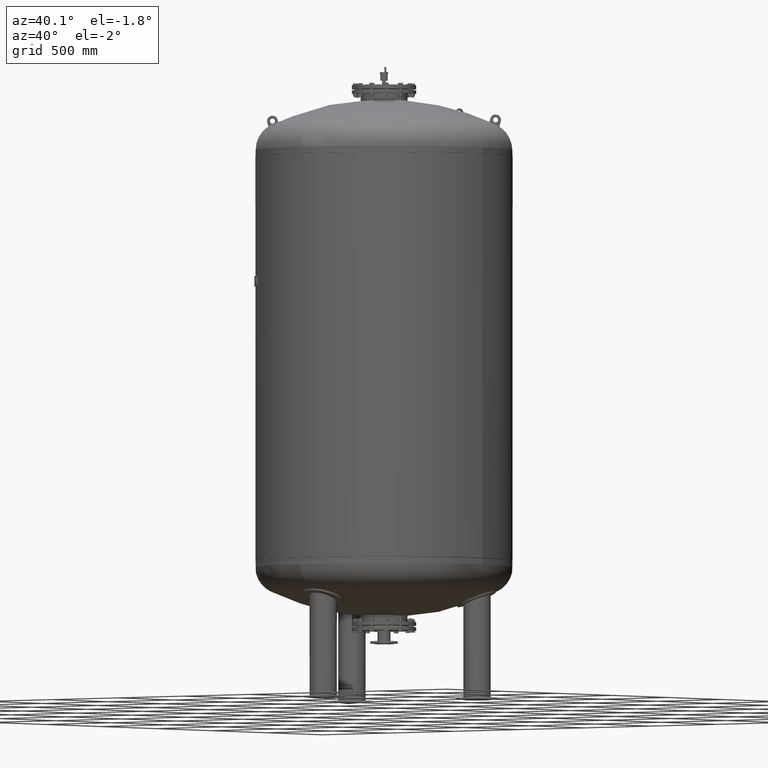
[diagram: clean part render]
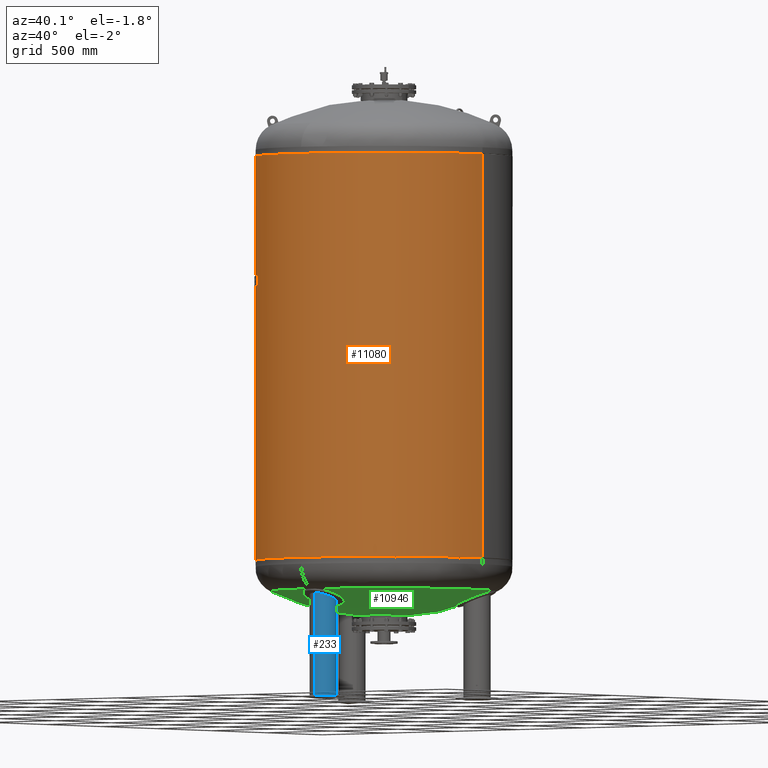
[diagram: same view with three faces highlighted in distinct colors, each labeled with its STEP entity id]
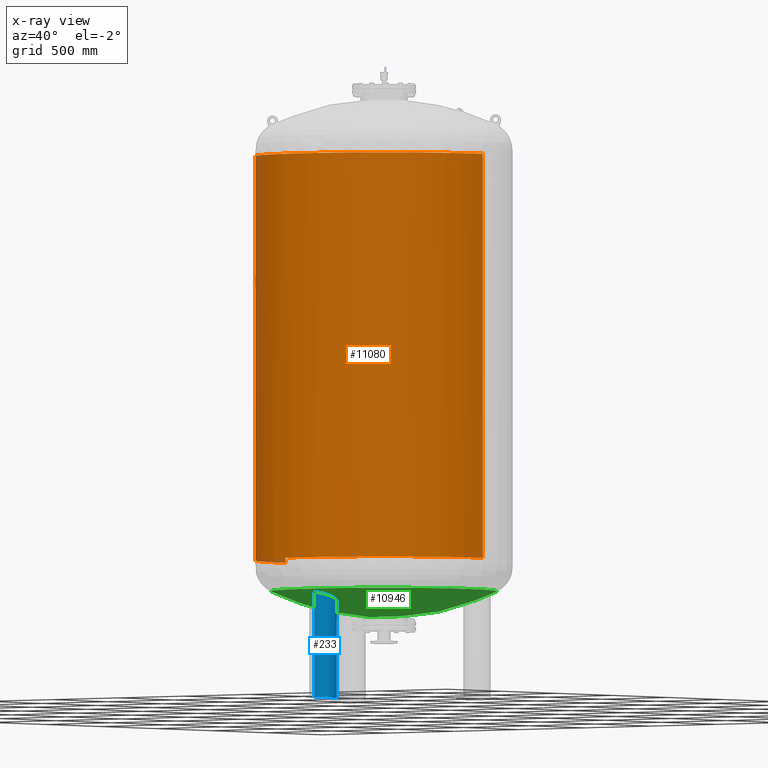
[diagram: x-ray of the same camera — body ghosted, the three highlighted faces saturated]
A machine part, auxiliary view with three faces highlighted in distinct colors.
The next image is the same camera in x-ray (body ghosted, the three faces saturated) — at least one of them is partly hidden behind the body in this view.
Their STEP definitions:

[orange] entity #11080 — the highlighted cylindrical surface (partial cylindrical patch) has radius 750 mm, axis along (0, 0, 1).
#11039=CARTESIAN_POINT('',(8.322769E-015,0.0,2588.500000000000000));
#11040=DIRECTION('',(1.414234E-017,0.0,1.0));
#11041=DIRECTION('',(1.0,0.0,0.0));
#11042=AXIS2_PLACEMENT_3D('',#11039,#11040,#11041);
#11043=CYLINDRICAL_SURFACE('',#11042,750.000000000000910);
#11044=CARTESIAN_POINT('',(750.000000000001360,0.0,3177.0));
#11045=VERTEX_POINT('',#11044);
#11046=CARTESIAN_POINT('',(749.999999999999890,0.0,822.999999999999770));
#11047=VERTEX_POINT('',#11046);
#11048=CARTESIAN_POINT('',(750.000000000001360,0.0,3177.0));
#11049=DIRECTION('',(0.0,0.0,-1.0));
#11050=VECTOR('',#11049,2354.0);
#11051=LINE('',#11048,#11050);
#11052=EDGE_CURVE('',#11045,#11047,#11051,.T.);
#11053=ORIENTED_EDGE('',*,*,#11052,.F.);
#11054=CARTESIAN_POINT('',(-750.000000000000910,-9.184548E-014,3177.0));
#11055=VERTEX_POINT('',#11054);
#11056=CARTESIAN_POINT('',(1.664554E-014,0.0,3177.0));
#11057=DIRECTION('',(0.0,0.0,1.0));
#11058=DIRECTION('',(1.0,0.0,0.0));
#11059=AXIS2_PLACEMENT_3D('',#11056,#11057,#11058);
#11060=CIRCLE('',#11059,750.000000000001360);
#11061=EDGE_CURVE('',#11055,#11045,#11060,.T.);
#11062=ORIENTED_EDGE('',*,*,#11061,.F.);
#11063=CARTESIAN_POINT('',(-749.999999999999770,-9.184548E-014,822.999999999999660));
#11064=VERTEX_POINT('',#11063);
#11065=CARTESIAN_POINT('',(-750.000000000000910,-9.184548E-014,3177.0));
#11066=DIRECTION('',(0.0,0.0,-1.0));
#11067=VECTOR('',#11066,2354.000000000000500);
#11068=LINE('',#11065,#11067);
#11069=EDGE_CURVE('',#11055,#11064,#11068,.T.);
#11070=ORIENTED_EDGE('',*,*,#11069,.T.);
#11071=CARTESIAN_POINT('',(-1.664554E-014,0.0,822.999999999999550));
#11072=DIRECTION('',(0.0,0.0,1.0));
#11073=DIRECTION('',(1.0,0.0,0.0));
#11074=AXIS2_PLACEMENT_3D('',#11071,#11072,#11073);
#11075=CIRCLE('',#11074,749.999999999999890);
#11076=EDGE_CURVE('',#11064,#11047,#11075,.T.);
#11077=ORIENTED_EDGE('',*,*,#11076,.T.);
#11078=EDGE_LOOP('',(#11053,#11062,#11070,#11077));
#11079=FACE_OUTER_BOUND('',#11078,.T.);
#11080=ADVANCED_FACE('',(#11079),#11043,.T.);

[blue] entity #233 — the highlighted cylindrical surface (edge-blend (fillet) strip) has radius 79.5 mm, axis along (0, -0, -1).
#167=CARTESIAN_POINT('',(-2.905276E-015,-550.0,15.815585141290533));
#168=DIRECTION('',(1.836970E-016,-3.374460E-032,-1.0));
#169=DIRECTION('',(0.0,-1.0,0.0));
#170=AXIS2_PLACEMENT_3D('',#167,#168,#169);
#171=CYLINDRICAL_SURFACE('',#170,79.500000000000000);
#172=CARTESIAN_POINT('',(-1.674052E-014,-629.500000000000000,11.631170282581067));
#173=VERTEX_POINT('',#172);
#174=CARTESIAN_POINT('',(-1.284913E-013,-629.500000000000680,619.974328976416250));
#175=VERTEX_POINT('',#174);
#176=CARTESIAN_POINT('',(-1.674052E-014,-629.500000000000000,11.631170282581067));
#177=DIRECTION('',(0.0,0.0,1.0));
#178=VECTOR('',#177,608.343158693835220);
#179=LINE('',#176,#178);
#180=EDGE_CURVE('',#173,#175,#179,.T.);
#181=ORIENTED_EDGE('',*,*,#180,.F.);
#182=CARTESIAN_POINT('',(2.220292E-014,-470.500000000000000,11.631170282581067));
#183=VERTEX_POINT('',#182);
#184=CARTESIAN_POINT('',(-2.136611E-015,-550.0,11.631170282581067));
#185=DIRECTION('',(0.0,0.0,-1.0));
#186=DIRECTION('',(0.0,-1.0,0.0));
#187=AXIS2_PLACEMENT_3D('',#184,#185,#186);
#188=CIRCLE('',#187,79.500000000000000);
#189=EDGE_CURVE('',#183,#173,#188,.T.);
#190=ORIENTED_EDGE('',*,*,#189,.F.);
#191=CARTESIAN_POINT('',(-7.182689E-014,-470.500000000000000,557.801446445446690));
#192=VERTEX_POINT('',#191);
#193=CARTESIAN_POINT('',(2.220292E-014,-470.500000000000000,11.631170282581067));
#194=DIRECTION('',(0.0,0.0,1.0));
#195=VECTOR('',#194,546.170276162865660);
#196=LINE('',#193,#195);
#197=EDGE_CURVE('',#183,#192,#196,.T.);
#198=ORIENTED_EDGE('',*,*,#197,.T.);
#199=CARTESIAN_POINT('',(79.496546794574527,-549.259022444332230,588.259208461118420));
#200=VERTEX_POINT('',#199);
#201=CARTESIAN_POINT('',(-7.182689E-014,-470.500000000000000,557.801446445446690));
#202=CARTESIAN_POINT('',(8.120663509625709,-470.500000000000000,557.801446445446690));
#203=CARTESIAN_POINT('',(16.181797699724985,-471.744255828588280,558.277369662588170));
#204=CARTESIAN_POINT('',(33.164619714983132,-477.098435150620050,560.328261777430270));
#205=CARTESIAN_POINT('',(41.714366610406451,-481.657352020981760,562.075596332598020));
#206=CARTESIAN_POINT('',(57.102984846283050,-493.777642472443740,566.734659420112730));
#207=CARTESIAN_POINT('',(63.659291648246828,-501.375090312636760,569.661195647944850));
#208=CARTESIAN_POINT('',(73.982822936199739,-519.024244692127350,576.486089468713540));
#209=CARTESIAN_POINT('',(77.408940630037023,-529.089375858457290,580.391859104990320));
#210=CARTESIAN_POINT('',(79.232830525971281,-542.704310446537420,585.699021239809100));
#211=CARTESIAN_POINT('',(79.466003833415044,-545.982189128008940,586.978453284904390));
#212=CARTESIAN_POINT('',(79.496546794574527,-549.259022444332230,588.259208461118420));
#213=B_SPLINE_CURVE_WITH_KNOTS('',3,(#201,#202,#203,#204,#205,#206,#207,#208,#209,#210,#211,#212),.UNSPECIFIED.,.F.,.U.,(4,2,2,2,2,4),(25.946274642103887,28.391196783303212,31.323094720106891,34.426409319311013,37.777807879739491,38.832927063683996),.UNSPECIFIED.);
#214=EDGE_CURVE('',#192,#200,#213,.T.);
#215=ORIENTED_EDGE('',*,*,#214,.T.);
#216=CARTESIAN_POINT('',(79.496546794574527,-549.259022444332230,588.259208461118420));
#217=CARTESIAN_POINT('',(79.569013932907993,-557.033734660013010,591.297966296070060));
#218=CARTESIAN_POINT('',(78.500805236188413,-564.802503619152730,594.344322088061060));
#219=CARTESIAN_POINT('',(73.259584389779818,-582.725585721040150,601.394273940897850));
#220=CARTESIAN_POINT('',(68.082238002880686,-592.519115795239940,605.264897102246320));
#221=CARTESIAN_POINT('',(54.397367842830221,-608.873445802111750,611.749699955350710));
#222=CARTESIAN_POINT('',(46.279319565829432,-615.490667371996890,614.383971692484580));
#223=CARTESIAN_POINT('',(31.375414450366577,-623.319741512061910,617.505471067215810));
#224=CARTESIAN_POINT('',(25.415018648142301,-625.599309760025790,618.415766111970470));
#225=CARTESIAN_POINT('',(12.938638782510688,-628.705585890656830,619.656658887407730));
#226=CARTESIAN_POINT('',(6.489221034626315,-629.499999999999770,619.974328976416020));
#227=CARTESIAN_POINT('',(-1.232084E-013,-629.499999999999770,619.974328976416020));
#228=B_SPLINE_CURVE_WITH_KNOTS('',3,(#216,#217,#218,#219,#220,#221,#222,#223,#224,#225,#226,#227),.UNSPECIFIED.,.F.,.U.,(4,2,2,2,2,4),(38.832927063683996,41.336334230459492,44.806614551580793,48.013896662752792,49.941938919734973,51.888705230122902),.UNSPECIFIED.);
#229=EDGE_CURVE('',#200,#175,#228,.T.);
#230=ORIENTED_EDGE('',*,*,#229,.T.);
#231=EDGE_LOOP('',(#181,#190,#198,#215,#230));
#232=FACE_OUTER_BOUND('',#231,.T.);
#233=ADVANCED_FACE('',(#232),#171,.T.);

[green] entity #10946 — the highlighted spherical surface has radius 1509 mm.
#10885=CARTESIAN_POINT('',(-4.647817E-014,-660.606666666666800,642.283437133770350));
#10886=VERTEX_POINT('',#10885);
#10902=CARTESIAN_POINT('',(-1.273765E-013,660.606666666666800,642.283437133770800));
#10903=VERTEX_POINT('',#10902);
#10911=CARTESIAN_POINT('',(-660.606666666666800,-2.797401E-014,642.283437133770460));
#10912=VERTEX_POINT('',#10911);
#10913=CARTESIAN_POINT('',(-2.617994E-014,-2.797401E-014,642.283437133770580));
#10914=DIRECTION('',(0.0,0.0,1.0));
#10915=DIRECTION('',(-1.0,0.0,0.0));
#10916=AXIS2_PLACEMENT_3D('',#10913,#10914,#10915);
#10917=CIRCLE('',#10916,660.606666666666800);
#10918=EDGE_CURVE('',#10903,#10912,#10917,.T.);
#10920=CARTESIAN_POINT('',(-2.617994E-014,-2.797401E-014,642.283437133770580));
#10921=DIRECTION('',(0.0,0.0,1.0));
#10922=DIRECTION('',(-1.0,0.0,0.0));
#10923=AXIS2_PLACEMENT_3D('',#10920,#10921,#10922);
#10924=CIRCLE('',#10923,660.606666666666800);
#10925=EDGE_CURVE('',#10912,#10886,#10924,.T.);
#10930=CARTESIAN_POINT('',(-3.455040E-013,-2.771988E-013,1999.0));
#10931=DIRECTION('',(0.0,-1.0,0.0));
#10932=DIRECTION('',(1.0,0.0,0.0));
#10933=AXIS2_PLACEMENT_3D('',#10930,#10931,#10932);
#10934=SPHERICAL_SURFACE('',#10933,1509.0);
#10935=ORIENTED_EDGE('',*,*,#10925,.F.);
#10936=ORIENTED_EDGE('',*,*,#10918,.F.);
#10937=CARTESIAN_POINT('',(-2.617994E-014,-2.797401E-014,642.283437133770580));
#10938=DIRECTION('',(0.0,0.0,1.0));
#10939=DIRECTION('',(-1.0,0.0,0.0));
#10940=AXIS2_PLACEMENT_3D('',#10937,#10938,#10939);
#10941=CIRCLE('',#10940,660.606666666666800);
#10942=EDGE_CURVE('',#10886,#10903,#10941,.T.);
#10943=ORIENTED_EDGE('',*,*,#10942,.F.);
#10944=EDGE_LOOP('',(#10935,#10936,#10943));
#10945=FACE_OUTER_BOUND('',#10944,.T.);
#10946=ADVANCED_FACE('',(#10945),#10934,.T.);